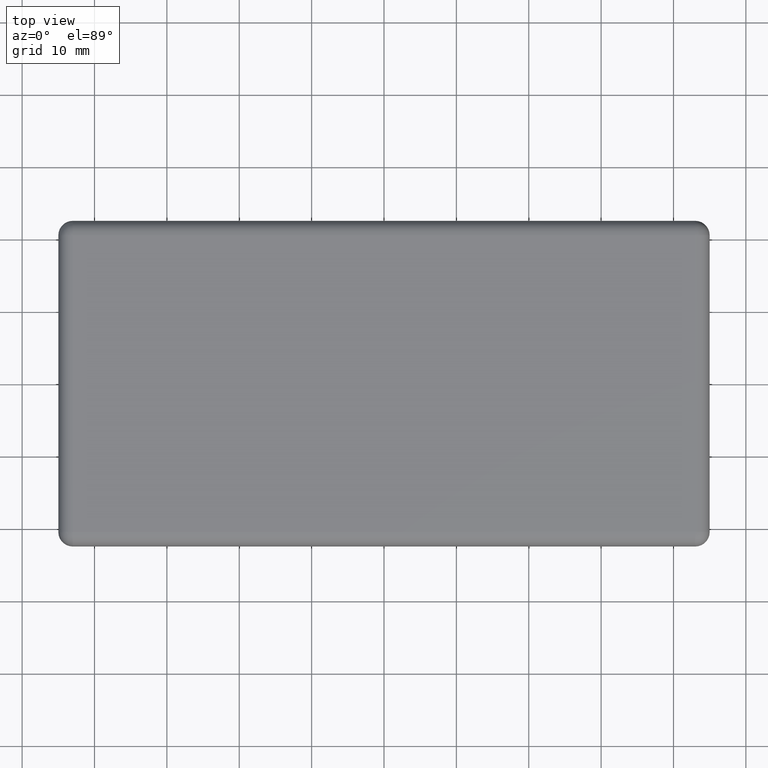
[diagram: clean part render]
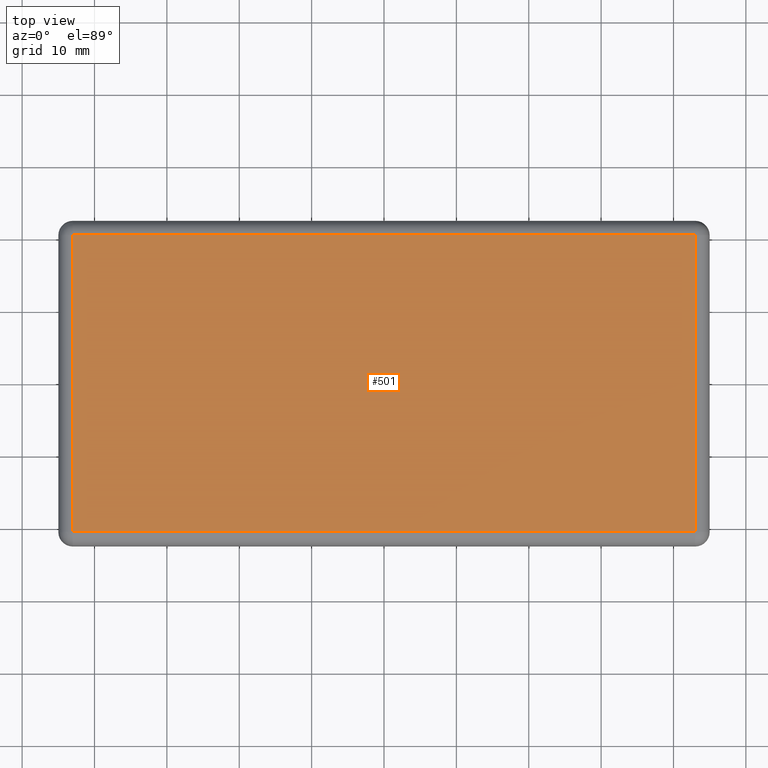
[diagram: same view with one face highlighted and labeled with its STEP entity id]
A machine part, top view. The second image highlights one B-rep face of the part: STEP entity #501.
In plain terms, the highlighted planar face has unit normal (0, 0, 1).
Its self-contained STEP definition (entity closure, byte-faithful):
#31=LINE('',#857,#51);
#32=LINE('',#859,#52);
#33=LINE('',#861,#53);
#34=LINE('',#862,#54);
#51=VECTOR('',#675,86.);
#52=VECTOR('',#676,41.);
#53=VECTOR('',#677,86.);
#54=VECTOR('',#678,41.);
#71=PLANE('',#561);
#117=FACE_OUTER_BOUND('',#171,.T.);
#171=EDGE_LOOP('',(#388,#389,#390,#391));
#277=VERTEX_POINT('',#855);
#278=VERTEX_POINT('',#856);
#279=VERTEX_POINT('',#858);
#280=VERTEX_POINT('',#860);
#321=EDGE_CURVE('',#277,#278,#31,.T.);
#322=EDGE_CURVE('',#279,#277,#32,.T.);
#323=EDGE_CURVE('',#280,#279,#33,.T.);
#324=EDGE_CURVE('',#278,#280,#34,.T.);
#388=ORIENTED_EDGE('',*,*,#321,.F.);
#389=ORIENTED_EDGE('',*,*,#322,.F.);
#390=ORIENTED_EDGE('',*,*,#323,.F.);
#391=ORIENTED_EDGE('',*,*,#324,.F.);
#501=ADVANCED_FACE('',(#117),#71,.T.);
#561=AXIS2_PLACEMENT_3D('',#854,#673,#674);
#673=DIRECTION('center_axis',(0.,0.,1.));
#674=DIRECTION('ref_axis',(1.,0.,0.));
#675=DIRECTION('',(1.,2.96059473233375E-16,0.));
#676=DIRECTION('',(1.97372982155583E-16,1.,0.));
#677=DIRECTION('',(-1.,-1.97372982155583E-16,0.));
#678=DIRECTION('',(1.97372982155583E-16,-1.,0.));
#854=CARTESIAN_POINT('Origin',(0.,-4.44089209850063E-15,2.5));
#855=CARTESIAN_POINT('',(-43.,20.5,2.5));
#856=CARTESIAN_POINT('',(43.,20.5,2.5));
#857=CARTESIAN_POINT('',(22.5,20.5,2.5));
#858=CARTESIAN_POINT('',(-43.,-20.5,2.5));
#859=CARTESIAN_POINT('',(-43.,11.25,2.5));
#860=CARTESIAN_POINT('',(43.,-20.5,2.5));
#861=CARTESIAN_POINT('',(-22.5,-20.5,2.5));
#862=CARTESIAN_POINT('',(43.,-11.25,2.5));